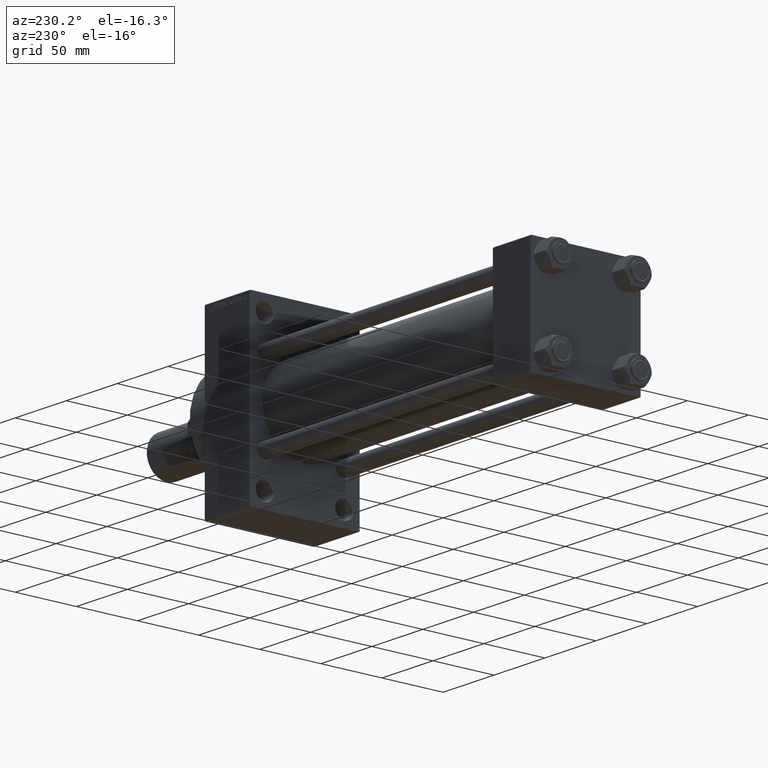
[diagram: clean part render]
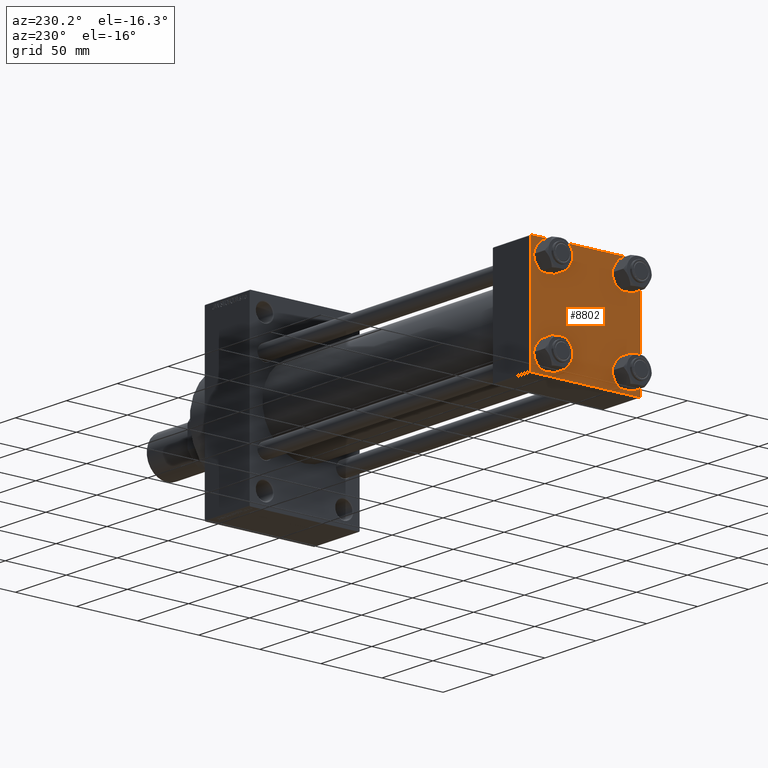
[diagram: same view with one face highlighted and labeled with its STEP entity id]
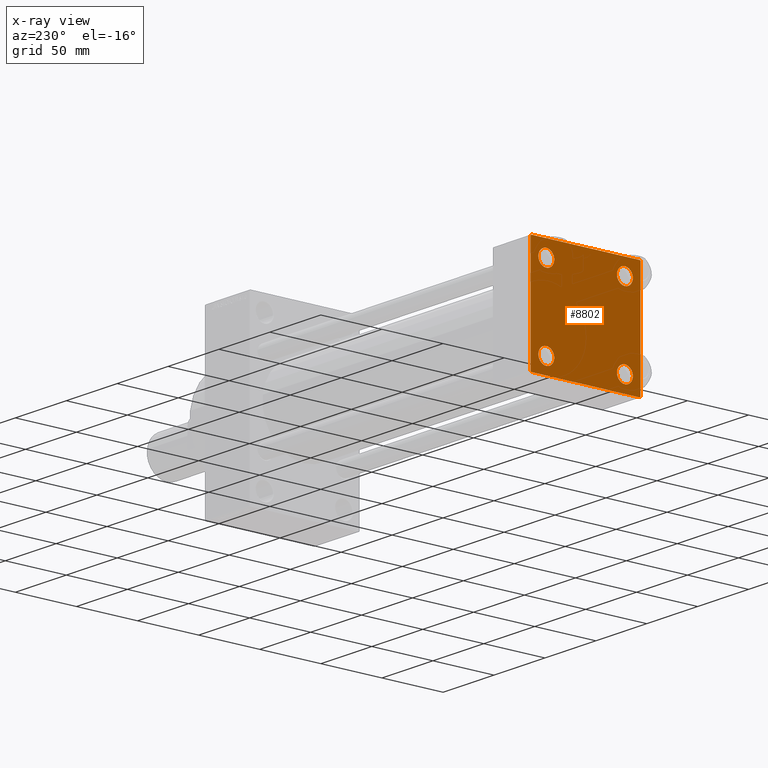
[diagram: x-ray of the same camera — body ghosted, the highlighted face saturated]
A machine part, auxiliary view. The second image highlights one B-rep face of the part: STEP entity #8802.
The next image is the same camera in x-ray: the body ghosted, the highlighted face saturated — about 0% of this face is hidden behind the body in this view.
In plain terms, the highlighted planar face has unit normal (-1, 0, 0).
Its self-contained STEP definition (entity closure, byte-faithful):
#109 = CARTESIAN_POINT ( 'NONE',  ( 0.000000000000000000, 32.14999999999999147, 32.15000000000000568 ) ) ;
#217 = VERTEX_POINT ( 'NONE', #36225 ) ;
#330 = CIRCLE ( 'NONE', #9533, 6.499999999999977796 ) ;
#335 = CARTESIAN_POINT ( 'NONE',  ( 0.000000000000000000, -45.00000000000000711, 44.49999999999997158 ) ) ;
#416 = CARTESIAN_POINT ( 'NONE',  ( 0.000000000000000000, -32.14999999999997726, -32.15000000000001279 ) ) ;
#629 = EDGE_LOOP ( 'NONE', ( #9794, #18154 ) ) ;
#1103 = ORIENTED_EDGE ( 'NONE', *, *, #13205, .T. ) ;
#1781 = EDGE_LOOP ( 'NONE', ( #10268, #17729, #22606, #39551, #22830, #17978, #15716, #32349 ) ) ;
#2637 = VERTEX_POINT ( 'NONE', #19025 ) ;
#3178 = AXIS2_PLACEMENT_3D ( 'NONE', #416, #3551, #7404 ) ;
#3551 = DIRECTION ( 'NONE',  ( 1.000000000000000000, -0.000000000000000000, 0.000000000000000000 ) ) ;
#4682 = LINE ( 'NONE', #27297, #18033 ) ;
#5027 = DIRECTION ( 'NONE',  ( 1.000000000000000000, -0.000000000000000000, 0.000000000000000000 ) ) ;
#5252 = DIRECTION ( 'NONE',  ( 0.000000000000000000, 0.000000000000000000, 1.000000000000000000 ) ) ;
#5953 = DIRECTION ( 'NONE',  ( 0.000000000000000000, 0.000000000000000000, -1.000000000000000000 ) ) ;
#6043 = AXIS2_PLACEMENT_3D ( 'NONE', #12466, #15623, #5252 ) ;
#6297 = DIRECTION ( 'NONE',  ( 1.000000000000000000, -0.000000000000000000, 0.000000000000000000 ) ) ;
#6775 = CARTESIAN_POINT ( 'NONE',  ( 0.000000000000000000, 32.14999999999999147, -32.15000000000000568 ) ) ;
#7404 = DIRECTION ( 'NONE',  ( 0.000000000000000000, 0.000000000000000000, 1.000000000000000000 ) ) ;
#7613 = LINE ( 'NONE', #19173, #31026 ) ;
#8571 = CARTESIAN_POINT ( 'NONE',  ( 0.000000000000000000, -32.14999999999997726, -25.65000000000003411 ) ) ;
#8736 = DIRECTION ( 'NONE',  ( -0.000000000000000000, 0.7071067811865425767, 0.7071067811865524577 ) ) ;
#8802 = ADVANCED_FACE ( 'NONE', ( #21503, #29180, #47264, #18602, #29422 ), #11348, .T. ) ;
#9039 = AXIS2_PLACEMENT_3D ( 'NONE', #38013, #23544, #16309 ) ;
#9422 = VECTOR ( 'NONE', #36146, 1000.000000000000000 ) ;
#9485 = AXIS2_PLACEMENT_3D ( 'NONE', #19448, #28078, #13137 ) ;
#9533 = AXIS2_PLACEMENT_3D ( 'NONE', #32699, #43082, #39467 ) ;
#9602 = DIRECTION ( 'NONE',  ( 0.000000000000000000, 7.709882115452476934E-17, -1.000000000000000000 ) ) ;
#9794 = ORIENTED_EDGE ( 'NONE', *, *, #25296, .T. ) ;
#10147 = EDGE_CURVE ( 'NONE', #22061, #17789, #26717, .T. ) ;
#10268 = ORIENTED_EDGE ( 'NONE', *, *, #46109, .T. ) ;
#10641 = VERTEX_POINT ( 'NONE', #39147 ) ;
#10870 = DIRECTION ( 'NONE',  ( -1.000000000000000000, 0.000000000000000000, -0.000000000000000000 ) ) ;
#11348 = PLANE ( 'NONE',  #39764 ) ;
#11516 = VECTOR ( 'NONE', #5953, 1000.000000000000000 ) ;
#12113 = VERTEX_POINT ( 'NONE', #8571 ) ;
#12388 = CIRCLE ( 'NONE', #3178, 6.499999999999977796 ) ;
#12466 = CARTESIAN_POINT ( 'NONE',  ( 0.000000000000000000, 32.14999999999999147, 32.15000000000000568 ) ) ;
#12608 = DIRECTION ( 'NONE',  ( 0.000000000000000000, -1.000000000000000000, -1.541976423090495387E-16 ) ) ;
#12704 = CARTESIAN_POINT ( 'NONE',  ( 0.000000000000000000, 44.99999999999998579, 45.00000000000001421 ) ) ;
#13137 = DIRECTION ( 'NONE',  ( 0.000000000000000000, 0.000000000000000000, 1.000000000000000000 ) ) ;
#13205 = EDGE_CURVE ( 'NONE', #12113, #217, #330, .T. ) ;
#13241 = VECTOR ( 'NONE', #26955, 1000.000000000000114 ) ;
#14108 = EDGE_LOOP ( 'NONE', ( #23530, #17904 ) ) ;
#14640 = EDGE_LOOP ( 'NONE', ( #1103, #37647 ) ) ;
#14706 = EDGE_CURVE ( 'NONE', #46595, #34270, #19978, .T. ) ;
#15079 = DIRECTION ( 'NONE',  ( 0.000000000000000000, 0.7071067811865474617, -0.7071067811865474617 ) ) ;
#15623 = DIRECTION ( 'NONE',  ( 1.000000000000000000, -0.000000000000000000, 0.000000000000000000 ) ) ;
#15716 = ORIENTED_EDGE ( 'NONE', *, *, #41457, .F. ) ;
#16209 = LINE ( 'NONE', #41753, #22124 ) ;
#16309 = DIRECTION ( 'NONE',  ( 0.000000000000000000, 0.000000000000000000, 1.000000000000000000 ) ) ;
#16648 = EDGE_CURVE ( 'NONE', #17789, #22061, #20275, .T. ) ;
#17048 = EDGE_CURVE ( 'NONE', #37536, #37421, #7613, .T. ) ;
#17187 = CARTESIAN_POINT ( 'NONE',  ( 0.000000000000000000, 44.49999999999998579, 45.00000000000001421 ) ) ;
#17729 = ORIENTED_EDGE ( 'NONE', *, *, #34905, .T. ) ;
#17789 = VERTEX_POINT ( 'NONE', #23621 ) ;
#17882 = DIRECTION ( 'NONE',  ( -0.000000000000000000, 0.000000000000000000, 1.000000000000000000 ) ) ;
#17904 = ORIENTED_EDGE ( 'NONE', *, *, #10147, .T. ) ;
#17978 = ORIENTED_EDGE ( 'NONE', *, *, #21402, .T. ) ;
#18033 = VECTOR ( 'NONE', #12608, 1000.000000000000000 ) ;
#18154 = ORIENTED_EDGE ( 'NONE', *, *, #29062, .T. ) ;
#18206 = ORIENTED_EDGE ( 'NONE', *, *, #42944, .T. ) ;
#18602 = FACE_BOUND ( 'NONE', #629, .T. ) ;
#18670 = DIRECTION ( 'NONE',  ( 1.000000000000000000, -0.000000000000000000, 0.000000000000000000 ) ) ;
#19025 = CARTESIAN_POINT ( 'NONE',  ( 0.000000000000000000, -44.49999999999995737, 45.00000000000000000 ) ) ;
#19173 = CARTESIAN_POINT ( 'NONE',  ( 0.000000000000000000, 44.74999999999999289, 44.74999999999999289 ) ) ;
#19448 = CARTESIAN_POINT ( 'NONE',  ( 0.000000000000000000, -32.14999999999997726, 32.15000000000001279 ) ) ;
#19978 = LINE ( 'NONE', #45507, #40351 ) ;
#20275 = CIRCLE ( 'NONE', #25663, 6.499999999999977796 ) ;
#21402 = EDGE_CURVE ( 'NONE', #46595, #2637, #16209, .T. ) ;
#21503 = FACE_BOUND ( 'NONE', #25355, .T. ) ;
#22061 = VERTEX_POINT ( 'NONE', #43954 ) ;
#22124 = VECTOR ( 'NONE', #8736, 1000.000000000000114 ) ;
#22606 = ORIENTED_EDGE ( 'NONE', *, *, #37895, .T. ) ;
#22830 = ORIENTED_EDGE ( 'NONE', *, *, #14706, .F. ) ;
#23530 = ORIENTED_EDGE ( 'NONE', *, *, #16648, .T. ) ;
#23544 = DIRECTION ( 'NONE',  ( 1.000000000000000000, -0.000000000000000000, 0.000000000000000000 ) ) ;
#23621 = CARTESIAN_POINT ( 'NONE',  ( 0.000000000000000000, 32.14999999999999147, -25.65000000000002700 ) ) ;
#24096 = CIRCLE ( 'NONE', #9485, 6.500000000000019540 ) ;
#25296 = EDGE_CURVE ( 'NONE', #40568, #40624, #26809, .T. ) ;
#25355 = EDGE_LOOP ( 'NONE', ( #29829, #18206 ) ) ;
#25663 = AXIS2_PLACEMENT_3D ( 'NONE', #6775, #6297, #46533 ) ;
#25877 = EDGE_CURVE ( 'NONE', #44345, #47429, #46101, .T. ) ;
#26717 = CIRCLE ( 'NONE', #9039, 6.499999999999977796 ) ;
#26809 = CIRCLE ( 'NONE', #6043, 6.499999999999977796 ) ;
#26955 = DIRECTION ( 'NONE',  ( 0.000000000000000000, -0.7071067811865474617, 0.7071067811865474617 ) ) ;
#27297 = CARTESIAN_POINT ( 'NONE',  ( 0.000000000000000000, 44.99999999999998579, 45.00000000000001421 ) ) ;
#27431 = LINE ( 'NONE', #41666, #13241 ) ;
#27863 = LINE ( 'NONE', #12704, #11516 ) ;
#28078 = DIRECTION ( 'NONE',  ( 1.000000000000000000, -0.000000000000000000, 0.000000000000000000 ) ) ;
#29062 = EDGE_CURVE ( 'NONE', #40624, #40568, #46245, .T. ) ;
#29180 = FACE_BOUND ( 'NONE', #14640, .T. ) ;
#29422 = FACE_OUTER_BOUND ( 'NONE', #1781, .T. ) ;
#29829 = ORIENTED_EDGE ( 'NONE', *, *, #25877, .T. ) ;
#31026 = VECTOR ( 'NONE', #15079, 1000.000000000000114 ) ;
#31345 = CARTESIAN_POINT ( 'NONE',  ( 0.000000000000000000, -32.14999999999997726, 38.65000000000003411 ) ) ;
#31625 = CARTESIAN_POINT ( 'NONE',  ( 0.000000000000000000, 44.99999999999998579, 44.50000000000001421 ) ) ;
#32328 = CARTESIAN_POINT ( 'NONE',  ( 0.000000000000000000, -32.14999999999997726, 25.64999999999999147 ) ) ;
#32349 = ORIENTED_EDGE ( 'NONE', *, *, #17048, .T. ) ;
#32642 = EDGE_CURVE ( 'NONE', #217, #12113, #12388, .T. ) ;
#32699 = CARTESIAN_POINT ( 'NONE',  ( 0.000000000000000000, -32.14999999999997726, -32.15000000000001279 ) ) ;
#33589 = CARTESIAN_POINT ( 'NONE',  ( 0.000000000000000000, 32.14999999999999147, 25.65000000000002700 ) ) ;
#33799 = AXIS2_PLACEMENT_3D ( 'NONE', #34408, #5027, #40938 ) ;
#33836 = DIRECTION ( 'NONE',  ( -0.000000000000000000, -0.7071067811865474617, -0.7071067811865474617 ) ) ;
#34270 = VERTEX_POINT ( 'NONE', #47276 ) ;
#34408 = CARTESIAN_POINT ( 'NONE',  ( 0.000000000000000000, -32.14999999999997726, 32.15000000000001279 ) ) ;
#34905 = EDGE_CURVE ( 'NONE', #10641, #44155, #37935, .T. ) ;
#35428 = CARTESIAN_POINT ( 'NONE',  ( 0.000000000000000000, 44.99999999999998579, -44.99999999999998579 ) ) ;
#35583 = EDGE_CURVE ( 'NONE', #43745, #34270, #27431, .T. ) ;
#36146 = DIRECTION ( 'NONE',  ( 0.000000000000000000, -1.000000000000000000, -1.541976423090495633E-16 ) ) ;
#36225 = CARTESIAN_POINT ( 'NONE',  ( 0.000000000000000000, -32.14999999999997726, -38.64999999999999147 ) ) ;
#36246 = AXIS2_PLACEMENT_3D ( 'NONE', #109, #18670, #36732 ) ;
#36693 = CARTESIAN_POINT ( 'NONE',  ( 0.000000000000000000, 44.49999999999998579, -44.99999999999998579 ) ) ;
#36732 = DIRECTION ( 'NONE',  ( 0.000000000000000000, 0.000000000000000000, 1.000000000000000000 ) ) ;
#37421 = VERTEX_POINT ( 'NONE', #31625 ) ;
#37462 = CARTESIAN_POINT ( 'NONE',  ( 0.000000000000000000, 44.74999999999998579, -44.74999999999998579 ) ) ;
#37536 = VERTEX_POINT ( 'NONE', #17187 ) ;
#37647 = ORIENTED_EDGE ( 'NONE', *, *, #32642, .T. ) ;
#37895 = EDGE_CURVE ( 'NONE', #44155, #43745, #46748, .T. ) ;
#37935 = LINE ( 'NONE', #37462, #40947 ) ;
#38013 = CARTESIAN_POINT ( 'NONE',  ( 0.000000000000000000, 32.14999999999999147, -32.15000000000000568 ) ) ;
#39147 = CARTESIAN_POINT ( 'NONE',  ( 0.000000000000000000, 44.99999999999998579, -44.49999999999995737 ) ) ;
#39467 = DIRECTION ( 'NONE',  ( 0.000000000000000000, 0.000000000000000000, 1.000000000000000000 ) ) ;
#39551 = ORIENTED_EDGE ( 'NONE', *, *, #35583, .T. ) ;
#39764 = AXIS2_PLACEMENT_3D ( 'NONE', #40517, #10870, #17882 ) ;
#40351 = VECTOR ( 'NONE', #9602, 1000.000000000000000 ) ;
#40517 = CARTESIAN_POINT ( 'NONE',  ( 0.000000000000000000, 0.000000000000000000, 0.000000000000000000 ) ) ;
#40568 = VERTEX_POINT ( 'NONE', #42783 ) ;
#40624 = VERTEX_POINT ( 'NONE', #33589 ) ;
#40938 = DIRECTION ( 'NONE',  ( 0.000000000000000000, 0.000000000000000000, 1.000000000000000000 ) ) ;
#40947 = VECTOR ( 'NONE', #33836, 1000.000000000000114 ) ;
#41203 = CARTESIAN_POINT ( 'NONE',  ( 0.000000000000000000, -44.49999999999995737, -45.00000000000000000 ) ) ;
#41457 = EDGE_CURVE ( 'NONE', #37536, #2637, #4682, .T. ) ;
#41666 = CARTESIAN_POINT ( 'NONE',  ( 0.000000000000000000, -44.74999999999998579, -44.74999999999998579 ) ) ;
#41753 = CARTESIAN_POINT ( 'NONE',  ( -0.000000000000000000, -44.75000000000029843, 44.74999999999967315 ) ) ;
#42783 = CARTESIAN_POINT ( 'NONE',  ( 0.000000000000000000, 32.14999999999999147, 38.64999999999999147 ) ) ;
#42944 = EDGE_CURVE ( 'NONE', #47429, #44345, #24096, .T. ) ;
#43082 = DIRECTION ( 'NONE',  ( 1.000000000000000000, -0.000000000000000000, 0.000000000000000000 ) ) ;
#43745 = VERTEX_POINT ( 'NONE', #41203 ) ;
#43954 = CARTESIAN_POINT ( 'NONE',  ( 0.000000000000000000, 32.14999999999999147, -38.64999999999998437 ) ) ;
#44155 = VERTEX_POINT ( 'NONE', #36693 ) ;
#44345 = VERTEX_POINT ( 'NONE', #31345 ) ;
#45507 = CARTESIAN_POINT ( 'NONE',  ( 0.000000000000000000, -45.00000000000000711, 45.00000000000000000 ) ) ;
#46101 = CIRCLE ( 'NONE', #33799, 6.500000000000019540 ) ;
#46109 = EDGE_CURVE ( 'NONE', #37421, #10641, #27863, .T. ) ;
#46245 = CIRCLE ( 'NONE', #36246, 6.499999999999977796 ) ;
#46533 = DIRECTION ( 'NONE',  ( 0.000000000000000000, 0.000000000000000000, 1.000000000000000000 ) ) ;
#46595 = VERTEX_POINT ( 'NONE', #335 ) ;
#46748 = LINE ( 'NONE', #35428, #9422 ) ;
#47264 = FACE_BOUND ( 'NONE', #14108, .T. ) ;
#47276 = CARTESIAN_POINT ( 'NONE',  ( 0.000000000000000000, -45.00000000000000000, -44.49999999999995737 ) ) ;
#47429 = VERTEX_POINT ( 'NONE', #32328 ) ;